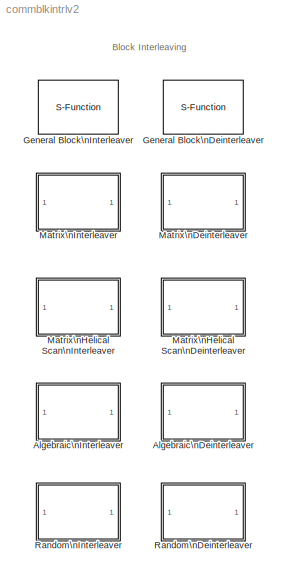
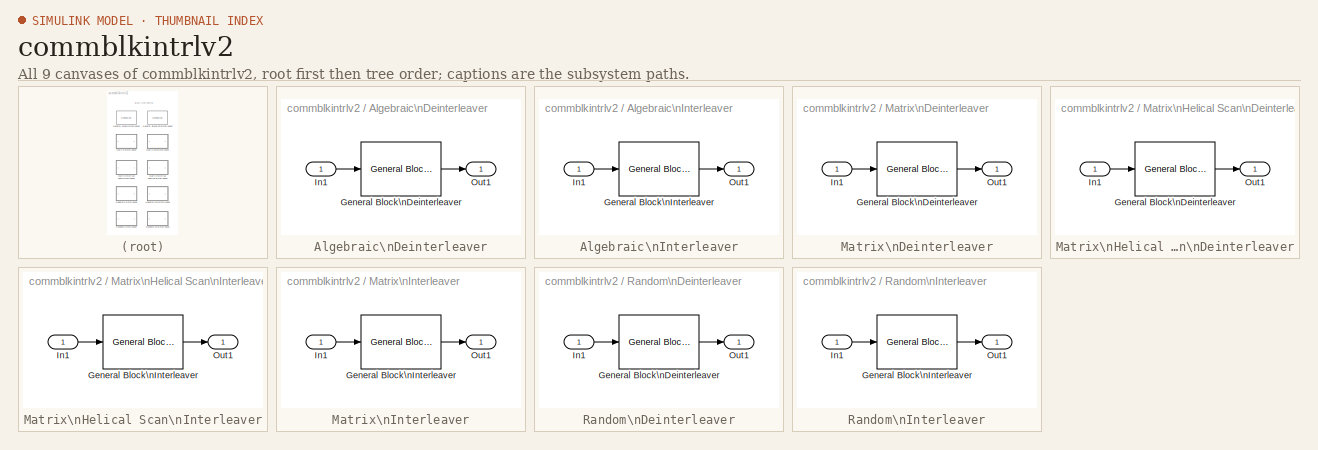
[diagram: thumbnail index - all 9 canvases of the model, root first then tree order]
MODEL commblkintrlv2
KIND library
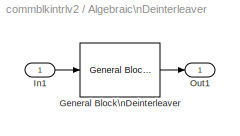
BLOCK [SubSystem] Algebraic\nDeinterleaver
  MaskCallbackString = commblkalgintrlvr(gcb,'Mode');||||
  MaskDescription = Deinterleave the elements of the input vector using an algebraically derived permutation table.\n\nFor the Takeshita-Costello type interleaver, the Number of elements N must be a power of 2, the Multiplicative factor must be an odd integer less than N, and the Cyclic shift must be a nonnegative integer less than N.\n\nFor the Welch-Costas type interleaver, the Number of elements N must be specifie...<+167ch>
  MaskDisplay = disp('Algebraic\\nDeinterleaver')
  MaskEnableString = on,on,on,on,off
  MaskHelp = helpview(commbhelp)
  MaskIconFrame = on
  MaskIconOpaque = on
  MaskIconRotate = none
  MaskIconUnits = autoscale
  MaskInitialization = int_tb = commblkalgintrlvr(gcb,'init');\nint_table = int_tb.';
  MaskPromptString = Type:|Number of elements:|Multiplicative factor:|Cyclic shift:|Primitive element:
  MaskSelfModifiable = on
  MaskStyleString = popup(Takeshita-Costello|Welch-Costas),edit,edit,edit,edit
  MaskTabNameString = ,,,,
  MaskToolTipString = on,on,on,on,on
  MaskTunableValueString = on,on,on,on,on
  MaskType = Algebraic Deinterleaver
  MaskValueString = Takeshita-Costello|256|13|0|6
  MaskVarAliasString = ,,,,
  MaskVariables = intType=@1;N=@2;k=@3;h=@4;alpha=@5;
  MaskVisibilityString = on,on,on,on,off
  MinAlgLoopOccurrences = off
  Ports = [1, 1]
  PropExecContextAcrossSSBoundary = on
  RTWSystemCode = Auto
  TreatAsAtomicUnit = off
BLOCK [Reference] Algebraic\nDeinterleaver/General Block\nDeinterleaver  REF=commblkintrlv2/General Block\nDeinterleaver
  Ports = [1, 1]
  SourceBlock = commblkintrlv2/General Block\nDeinterleaver
  SourceType = General Block Deinterleaver
  elements = int_table
BLOCK [Inport] Algebraic\nDeinterleaver/In1
  IconDisplay = Port number
  LatchInput = off
BLOCK [Outport] Algebraic\nDeinterleaver/Out1
  BusOutputAsStruct = off
  IconDisplay = Port number
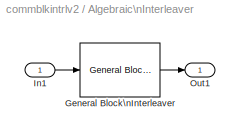
BLOCK [SubSystem] Algebraic\nInterleaver
  MaskCallbackString = commblkalgintrlvr(gcb,'Mode');||||
  MaskDescription = Interleave the elements of the input vector using an algebraically derived permutation table.\n\nFor the Takeshita-Costello type interleaver, the Number of elements N must be a power of 2, the Multiplicative factor must be an odd integer less than N, and the Cyclic shift must be a nonnegative integer less than N.\n\nFor the Welch-Costas type interleaver, the Number of elements N must be specified ...<+165ch>
  MaskDisplay = disp('Algebraic\\nInterleaver')
  MaskEnableString = on,on,on,on,off
  MaskHelp = helpview(commbhelp)
  MaskIconFrame = on
  MaskIconOpaque = on
  MaskIconRotate = none
  MaskIconUnits = autoscale
  MaskInitialization = int_tb = commblkalgintrlvr(gcb,'init');\nint_table = int_tb.';
  MaskPromptString = Type:|Number of elements:|Multiplicative factor:|Cyclic shift:|Primitive element:
  MaskSelfModifiable = on
  MaskStyleString = popup(Takeshita-Costello|Welch-Costas),edit,edit,edit,edit
  MaskTabNameString = ,,,,
  MaskToolTipString = on,on,on,on,on
  MaskTunableValueString = on,on,on,on,on
  MaskType = Algebraic Interleaver
  MaskValueString = Takeshita-Costello|256|13|0|6
  MaskVarAliasString = ,,,,
  MaskVariables = intType=@1;N=@2;k=@3;h=@4;alpha=@5;
  MaskVisibilityString = on,on,on,on,off
  MinAlgLoopOccurrences = off
  Ports = [1, 1]
  PropExecContextAcrossSSBoundary = on
  RTWSystemCode = Auto
  TreatAsAtomicUnit = off
BLOCK [Reference] Algebraic\nInterleaver/General Block\nInterleaver  REF=commblkintrlv2/General Block\nInterleaver
  Ports = [1, 1]
  SourceBlock = commblkintrlv2/General Block\nInterleaver
  SourceType = General Block Interleaver
  elements = int_table
BLOCK [Inport] Algebraic\nInterleaver/In1
  IconDisplay = Port number
  LatchInput = off
BLOCK [Outport] Algebraic\nInterleaver/Out1
  BusOutputAsStruct = off
  IconDisplay = Port number
BLOCK [S-Function] General Block\nDeinterleaver
  FunctionName = scominterl
  MaskDescription = Reorder the elements of the input vector. y(elements) = u.  The length of Elements must match the input signal width.
  MaskDisplay = disp('General\\nBlock\\nDeinterleaver')
  MaskEnableString = on
  MaskHelp = helpview(commbhelp)
  MaskIconFrame = on
  MaskIconOpaque = on
  MaskIconRotate = none
  MaskIconUnits = autoscale
  MaskInitialization = method = 2;\ncommblkinterl(elements);\n
  MaskPromptString = Elements:
  MaskStyleString = edit
  MaskToolTipString = on
  MaskTunableValueString = on
  MaskType = General Block Deinterleaver
  MaskValueString = [5:-1:1].'
  MaskVariables = elements=@1;
  MaskVisibilityString = on
  Parameters = elements,method
  Ports = [1, 1]
BLOCK [S-Function] General Block\nInterleaver
  FunctionName = scominterl
  MaskDescription = Reorder the elements of the input vector. y = u(Elements). The length of Elements must match the input signal width.
  MaskDisplay = disp('General\\nBlock\\nInterleaver')
  MaskEnableString = on
  MaskHelp = helpview(commbhelp)
  MaskIconFrame = on
  MaskIconOpaque = on
  MaskIconRotate = none
  MaskIconUnits = autoscale
  MaskInitialization = method = 1;\ncommblkinterl(elements);\n
  MaskPromptString = Elements:
  MaskStyleString = edit
  MaskToolTipString = on
  MaskTunableValueString = on
  MaskType = General Block Interleaver
  MaskValueString = [5:-1:1].'
  MaskVariables = elements=@1;
  MaskVisibilityString = on
  Parameters = elements,method
  Ports = [1, 1]
BLOCK [SubSystem] Matrix\nDeinterleaver
  MaskCallbackString = |
  MaskDescription = Deinterleave the input vector by writing the elements into a matrix column-by-column and reading them out row-by-row.  The product of Number of rows and Number of columns must match the input signal width.
  MaskDisplay = disp('Matrix\\nDeinterleaver')
  MaskEnableString = on,on
  MaskHelp = helpview(commbhelp)
  MaskIconFrame = on
  MaskIconOpaque = on
  MaskIconRotate = none
  MaskIconUnits = autoscale
  MaskInitialization = int_table = reshape(reshape([1:Nrows*Ncols],Ncols,Nrows)',Nrows*Ncols,1);
  MaskPromptString = Number of rows:|Number of columns:
  MaskStyleString = edit,edit
  MaskTabNameString = ,
  MaskToolTipString = on,on
  MaskTunableValueString = on,on
  MaskType = Matrix Deinterleaver
  MaskValueString = 3|4
  MaskVarAliasString = ,
  MaskVariables = Nrows=@1;Ncols=@2;
  MaskVisibilityString = on,on
  MinAlgLoopOccurrences = off
  Ports = [1, 1]
  PropExecContextAcrossSSBoundary = on
  RTWSystemCode = Auto
  TreatAsAtomicUnit = off
BLOCK [Reference] Matrix\nDeinterleaver/General Block\nDeinterleaver  REF=commblkintrlv2/General Block\nDeinterleaver
  Ports = [1, 1]
  SourceBlock = commblkintrlv2/General Block\nDeinterleaver
  SourceType = General Block Deinterleaver
  elements = int_table
BLOCK [Inport] Matrix\nDeinterleaver/In1
  IconDisplay = Port number
  LatchInput = off
BLOCK [Outport] Matrix\nDeinterleaver/Out1
  BusOutputAsStruct = off
  IconDisplay = Port number
BLOCK [SubSystem] Matrix\nHelical Scan\nDeinterleaver
  MaskCallbackString = ||
  MaskDescription = Restore the ordering of symbols permuted by a matching helical scan interleaver.  The helical scan interleaver writes input elements row-by-row into an array with a specified number of rows and columns.  The interleaver output is then read by scanning along diagonals of this array.  The pitch of the diagonal scans is determined by the array step size.\n\nThe array step size must be a nonnegative i...<+191ch>
  MaskDisplay = disp('Matrix\\nHelical Scan\\nDeinterleaver')
  MaskEnableString = on,on,on
  MaskHelp = helpview(commbhelp)
  MaskIconFrame = on
  MaskIconOpaque = on
  MaskIconRotate = none
  MaskIconUnits = autoscale
  MaskInitialization = if(Nrows<=0)\n   error('The number of rows must be a nonnegative integer.');\nend\n\nif(Ncols<=0)\n   error('The number of columns must be a nonnegative integer.');\nend\n\nif Hstep>=Nrows | Hstep<0\n    error('The array step size must be a nonnegative integer less than the specified number of rows.');\nend\n\nint_table = zeros(Nrows*Ncols,1);\nfor i=1:Nrows\n j=1:Ncols;\n int_table((i-1)*Ncols+j)...<+43ch>
  MaskPromptString = Number of rows:|Number of columns:|Array step size:
  MaskStyleString = edit,edit,edit
  MaskTabNameString = ,,
  MaskToolTipString = on,on,on
  MaskTunableValueString = on,on,on
  MaskType = Matrix helical scan deinterleaver
  MaskValueString = 64|64|1
  MaskVarAliasString = ,,
  MaskVariables = Nrows=@1;Ncols=@2;Hstep=@3;
  MaskVisibilityString = on,on,on
  MinAlgLoopOccurrences = off
  Ports = [1, 1]
  PropExecContextAcrossSSBoundary = on
  RTWSystemCode = Auto
  TreatAsAtomicUnit = off
BLOCK [Reference] Matrix\nHelical Scan\nDeinterleaver/General Block\nDeinterleaver  REF=commblkintrlv2/General Block\nDeinterleaver
  Ports = [1, 1]
  SourceBlock = commblkintrlv2/General Block\nDeinterleaver
  SourceType = General Block Deinterleaver
  elements = int_table
BLOCK [Inport] Matrix\nHelical Scan\nDeinterleaver/In1
  IconDisplay = Port number
  LatchInput = off
BLOCK [Outport] Matrix\nHelical Scan\nDeinterleaver/Out1
  BusOutputAsStruct = off
  IconDisplay = Port number
BLOCK [SubSystem] Matrix\nHelical Scan\nInterleaver
  MaskCallbackString = ||
  MaskDescription = Interleave input vector by writing elements row-by-row into an array with a specified number of rows and columns and then reading them out by scanning along diagonals of this array.  The pitch of the diagonal scans is determined by the array step size.\n\nThe array step size must be a nonnegative integer less than the specified number of rows.  An array step size of zero indicates no interleaving....<+90ch>
  MaskDisplay = disp('Matrix\\nHelical Scan\\nInterleaver')
  MaskEnableString = on,on,on
  MaskHelp = helpview(commbhelp)
  MaskIconFrame = on
  MaskIconOpaque = on
  MaskIconRotate = none
  MaskIconUnits = autoscale
  MaskInitialization = if(Nrows<=0)\n   error('The number of rows must be a nonnegative integer.');\nend\n\nif(Ncols<=0)\n   error('The number of columns must be a nonnegative integer.');\nend\n\nif Hstep>=Nrows | Hstep<0\n    error('The array step size must be a nonnegative integer less than the specified number of rows.');\nend\n\nint_table = zeros(Nrows*Ncols,1);\nfor i=1:Nrows\n j=1:Ncols;\n int_table((i-1)*Ncols+j)...<+41ch>
  MaskPromptString = Number of rows:|Number of columns:|Array step size:
  MaskStyleString = edit,edit,edit
  MaskTabNameString = ,,
  MaskToolTipString = on,on,on
  MaskTunableValueString = on,on,on
  MaskType = Matrix helical scan interleaver
  MaskValueString = 64|64|1
  MaskVarAliasString = ,,
  MaskVariables = Nrows=@1;Ncols=@2;Hstep=@3;
  MaskVisibilityString = on,on,on
  MinAlgLoopOccurrences = off
  Ports = [1, 1]
  PropExecContextAcrossSSBoundary = on
  RTWSystemCode = Auto
  TreatAsAtomicUnit = off
BLOCK [Reference] Matrix\nHelical Scan\nInterleaver/General Block\nInterleaver  REF=commblkintrlv2/General Block\nInterleaver
  Ports = [1, 1]
  SourceBlock = commblkintrlv2/General Block\nInterleaver
  SourceType = General Block Interleaver
  elements = int_table
BLOCK [Inport] Matrix\nHelical Scan\nInterleaver/In1
  IconDisplay = Port number
  LatchInput = off
BLOCK [Outport] Matrix\nHelical Scan\nInterleaver/Out1
  BusOutputAsStruct = off
  IconDisplay = Port number
BLOCK [SubSystem] Matrix\nInterleaver
  MaskCallbackString = |
  MaskDescription = Interleave the input vector by writing the elements into a matrix row-by-row and reading them out column-by-column.  The product of Number of rows and Number of columns must match the input signal width.
  MaskDisplay = disp('Matrix\\nInterleaver')
  MaskEnableString = on,on
  MaskHelp = helpview(commbhelp)
  MaskIconFrame = on
  MaskIconOpaque = on
  MaskIconRotate = none
  MaskIconUnits = autoscale
  MaskInitialization = int_table = reshape(reshape([1:Nrows*Ncols],Ncols,Nrows)',Nrows*Ncols,1);
  MaskPromptString = Number of rows:|Number of columns:
  MaskStyleString = edit,edit
  MaskTabNameString = ,
  MaskToolTipString = on,on
  MaskTunableValueString = on,on
  MaskType = Matrix Interleaver
  MaskValueString = 3|4
  MaskVarAliasString = ,
  MaskVariables = Nrows=@1;Ncols=@2;
  MaskVisibilityString = on,on
  MinAlgLoopOccurrences = off
  Ports = [1, 1]
  PropExecContextAcrossSSBoundary = on
  RTWSystemCode = Auto
  TreatAsAtomicUnit = off
BLOCK [Reference] Matrix\nInterleaver/General Block\nInterleaver  REF=commblkintrlv2/General Block\nInterleaver
  Ports = [1, 1]
  SourceBlock = commblkintrlv2/General Block\nInterleaver
  SourceType = General Block Interleaver
  elements = int_table
BLOCK [Inport] Matrix\nInterleaver/In1
  IconDisplay = Port number
  LatchInput = off
BLOCK [Outport] Matrix\nInterleaver/Out1
  BusOutputAsStruct = off
  IconDisplay = Port number
BLOCK [SubSystem] Random\nDeinterleaver
  MaskCallbackString = |
  MaskDescription = Deinterleave the elements of the input vector using a random permutation.  The Number of elements must match the input signal width.
  MaskDisplay = disp('Random\\nDeinterleaver')
  MaskEnableString = on,on
  MaskHelp = helpview(commbhelp)
  MaskIconFrame = on
  MaskIconOpaque = on
  MaskIconRotate = none
  MaskIconUnits = autoscale
  MaskInitialization = rand('state',seed);\nint_table = (randperm(N)).';
  MaskPromptString = Number of elements:|Initial seed:
  MaskStyleString = edit,edit
  MaskTabNameString = ,
  MaskToolTipString = on,on
  MaskTunableValueString = on,on
  MaskType = Random Deinterleaver
  MaskValueString = 100|12345
  MaskVarAliasString = ,
  MaskVariables = N=@1;seed=@2;
  MaskVisibilityString = on,on
  MinAlgLoopOccurrences = off
  Ports = [1, 1]
  PropExecContextAcrossSSBoundary = on
  RTWSystemCode = Auto
  TreatAsAtomicUnit = off
BLOCK [Reference] Random\nDeinterleaver/General Block\nDeinterleaver  REF=commblkintrlv2/General Block\nDeinterleaver
  Ports = [1, 1]
  SourceBlock = commblkintrlv2/General Block\nDeinterleaver
  SourceType = General Block Deinterleaver
  elements = int_table
BLOCK [Inport] Random\nDeinterleaver/In1
  IconDisplay = Port number
  LatchInput = off
BLOCK [Outport] Random\nDeinterleaver/Out1
  BusOutputAsStruct = off
  IconDisplay = Port number
BLOCK [SubSystem] Random\nInterleaver
  MaskCallbackString = |
  MaskDescription = Interleave the elements of the input vector using a random permutation.  The Number of elements must match the input signal width.
  MaskDisplay = disp('Random\\nInterleaver')
  MaskEnableString = on,on
  MaskHelp = helpview(commbhelp)
  MaskIconFrame = on
  MaskIconOpaque = on
  MaskIconRotate = none
  MaskIconUnits = autoscale
  MaskInitialization = rand('state',seed);\nint_table = (randperm(N)).';
  MaskPromptString = Number of elements:|Initial seed:
  MaskStyleString = edit,edit
  MaskTabNameString = ,
  MaskToolTipString = on,on
  MaskTunableValueString = on,on
  MaskType = Random Interleaver
  MaskValueString = 100|12345
  MaskVarAliasString = ,
  MaskVariables = N=@1;seed=@2;
  MaskVisibilityString = on,on
  MinAlgLoopOccurrences = off
  Ports = [1, 1]
  PropExecContextAcrossSSBoundary = on
  RTWSystemCode = Auto
  TreatAsAtomicUnit = off
BLOCK [Reference] Random\nInterleaver/General Block\nInterleaver  REF=commblkintrlv2/General Block\nInterleaver
  Ports = [1, 1]
  SourceBlock = commblkintrlv2/General Block\nInterleaver
  SourceType = General Block Interleaver
  elements = int_table
BLOCK [Inport] Random\nInterleaver/In1
  IconDisplay = Port number
  LatchInput = off
BLOCK [Outport] Random\nInterleaver/Out1
  BusOutputAsStruct = off
  IconDisplay = Port number
ANNOTATION (root): Block Interleaving
LINE Algebraic\nDeinterleaver/General Block\nDeinterleaver:1 -> Algebraic\nDeinterleaver/Out1:1
LINE Algebraic\nDeinterleaver/In1:1 -> Algebraic\nDeinterleaver/General Block\nDeinterleaver:1
LINE Algebraic\nInterleaver/General Block\nInterleaver:1 -> Algebraic\nInterleaver/Out1:1
LINE Algebraic\nInterleaver/In1:1 -> Algebraic\nInterleaver/General Block\nInterleaver:1
LINE Matrix\nDeinterleaver/General Block\nDeinterleaver:1 -> Matrix\nDeinterleaver/Out1:1
LINE Matrix\nDeinterleaver/In1:1 -> Matrix\nDeinterleaver/General Block\nDeinterleaver:1
LINE Matrix\nHelical Scan\nDeinterleaver/General Block\nDeinterleaver:1 -> Matrix\nHelical Scan\nDeinterleaver/Out1:1
LINE Matrix\nHelical Scan\nDeinterleaver/In1:1 -> Matrix\nHelical Scan\nDeinterleaver/General Block\nDeinterleaver:1
LINE Matrix\nHelical Scan\nInterleaver/General Block\nInterleaver:1 -> Matrix\nHelical Scan\nInterleaver/Out1:1
LINE Matrix\nHelical Scan\nInterleaver/In1:1 -> Matrix\nHelical Scan\nInterleaver/General Block\nInterleaver:1
LINE Matrix\nInterleaver/General Block\nInterleaver:1 -> Matrix\nInterleaver/Out1:1
LINE Matrix\nInterleaver/In1:1 -> Matrix\nInterleaver/General Block\nInterleaver:1
LINE Random\nDeinterleaver/General Block\nDeinterleaver:1 -> Random\nDeinterleaver/Out1:1
LINE Random\nDeinterleaver/In1:1 -> Random\nDeinterleaver/General Block\nDeinterleaver:1
LINE Random\nInterleaver/General Block\nInterleaver:1 -> Random\nInterleaver/Out1:1
LINE Random\nInterleaver/In1:1 -> Random\nInterleaver/General Block\nInterleaver:1
